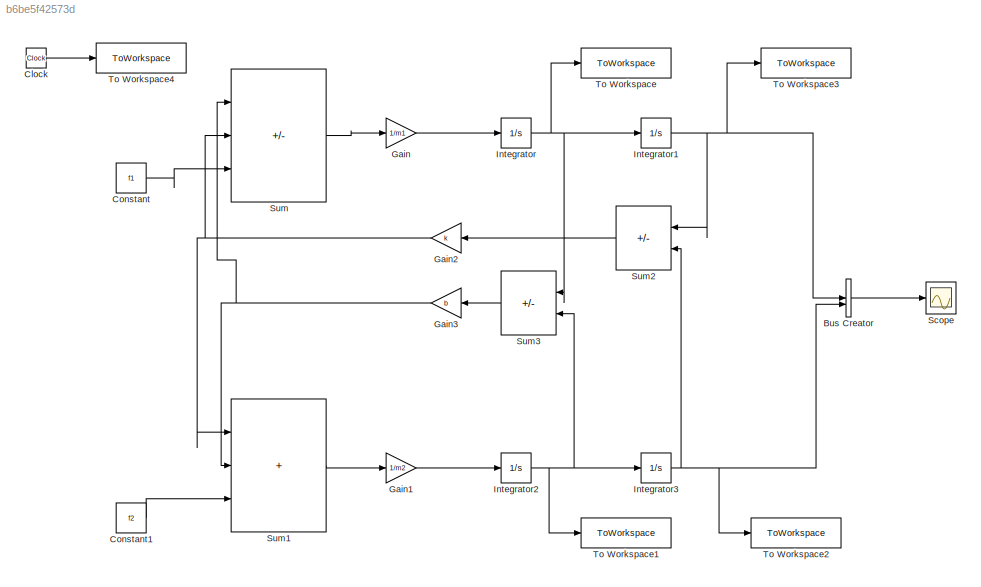
MODEL slx_b6be5f42573d
KIND model
CONFIG AbsTol = auto
CONFIG EnableMultiTasking = off
CONFIG FixedStep = auto
CONFIG MaxStep = auto
CONFIG MinStep = auto
CONFIG RelTol = 1e-3
CONFIG SampleTimeConstraint = Unconstrained
CONFIG SolverName = VariableStepAuto
CONFIG StartTime = 0.0
CONFIG StopTime = 10.0
BLOCK [BusCreator] Bus Creator
  DisplayOption = bar
  InheritFromInputs = on
  Inputs = 2
BLOCK [Clock] Clock
BLOCK [Constant] Constant
  Value = f1
BLOCK [Constant] Constant1
  Value = f2
BLOCK [Gain] Gain
  Gain = 1/m1
BLOCK [Gain] Gain1
  Gain = 1/m2
BLOCK [Gain] Gain2
  Gain = k
BLOCK [Gain] Gain3
  Gain = b
BLOCK [Integrator] Integrator
BLOCK [Integrator] Integrator1
BLOCK [Integrator] Integrator2
BLOCK [Integrator] Integrator3
BLOCK [Scope] Scope
  Floating = off
  NumInputPorts = 1
  ScopeSpecificationString = Simulink.scopes.TimeScopeBlockCfg('CurrentConfiguration', extmgr.ConfigurationSet(extmgr.Configuration('Core','General UI',true),extmgr.Configuration('Core','Source UI',true),extmgr.Configuration('Sources','WiredSimulink',true),extmgr.Configuration('Visuals','Time Domain',true,'SerializedDisplays',{struct('MinYLimReal','-4.2841','MaxYLimReal','5.91614','YLabelReal','','MinYLimMag','0.00000','MaxYL...<+1343ch>
BLOCK [Sum] Sum
  IconShape = rectangular
  Inputs = |--+
BLOCK [Sum] Sum1
  IconShape = rectangular
  Inputs = |+++
BLOCK [Sum] Sum2
  IconShape = rectangular
  Inputs = |+-
BLOCK [Sum] Sum3
  IconShape = rectangular
  Inputs = |+-
BLOCK [ToWorkspace] To Workspace
  FixptAsFi = on
  MaxDataPoints = inf
  SampleTime = -1
  SaveFormat = Timeseries
  VariableName = v1
BLOCK [ToWorkspace] To Workspace1
  FixptAsFi = on
  MaxDataPoints = inf
  SampleTime = -1
  SaveFormat = Timeseries
  VariableName = v2
BLOCK [ToWorkspace] To Workspace2
  FixptAsFi = on
  MaxDataPoints = inf
  SampleTime = -1
  SaveFormat = Timeseries
  VariableName = x2
BLOCK [ToWorkspace] To Workspace3
  FixptAsFi = on
  MaxDataPoints = inf
  SampleTime = -1
  SaveFormat = Timeseries
  VariableName = x1
BLOCK [ToWorkspace] To Workspace4
  FixptAsFi = on
  MaxDataPoints = inf
  SampleTime = -1
  SaveFormat = Timeseries
  VariableName = t
LINE Bus Creator:1 -> Scope:1
LINE Clock:1 -> To Workspace4:1
LINE Constant1:1 -> Sum1:3
LINE Constant:1 -> Sum:3
LINE Gain1:1 -> Integrator2:1
NET Gain2:1 -> Sum1:1, Sum:2
NET Gain3:1 -> Sum1:2, Sum:1
LINE Gain:1 -> Integrator:1
NET Integrator1:1 -> Bus Creator:1, Sum2:1, To Workspace3:1
NET Integrator2:1 -> Integrator3:1, Sum3:2, To Workspace1:1
NET Integrator3:1 -> Bus Creator:2, Sum2:2, To Workspace2:1
NET Integrator:1 -> Integrator1:1, Sum3:1, To Workspace:1
LINE Sum1:1 -> Gain1:1
LINE Sum2:1 -> Gain2:1
LINE Sum3:1 -> Gain3:1
LINE Sum:1 -> Gain:1
note: NET lines group one-source signal fan-out (src -> all destinations, sorted); 1:1 wires keep LINE
